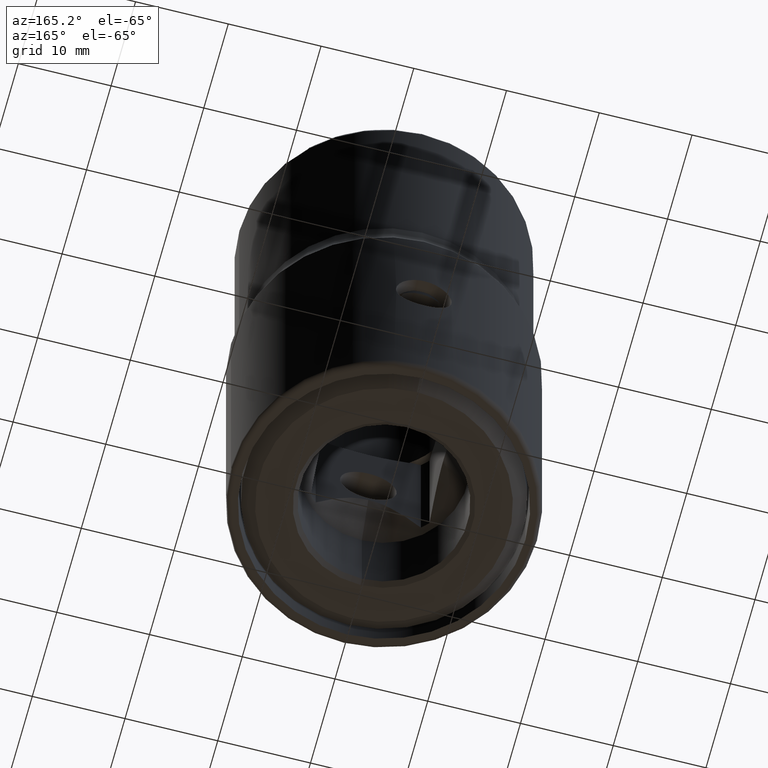
[diagram: clean part render]
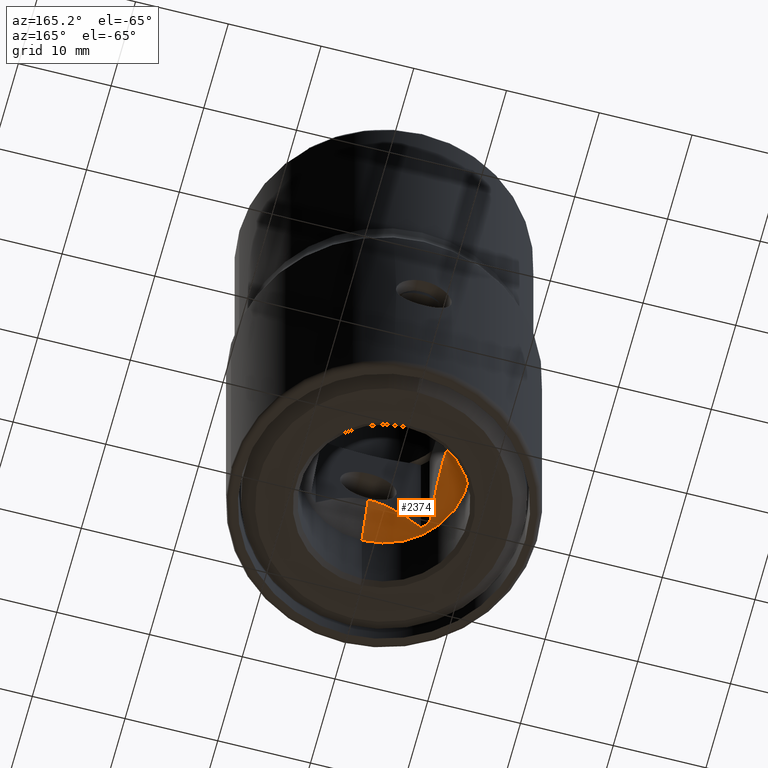
[diagram: same view with one face highlighted and labeled with its STEP entity id]
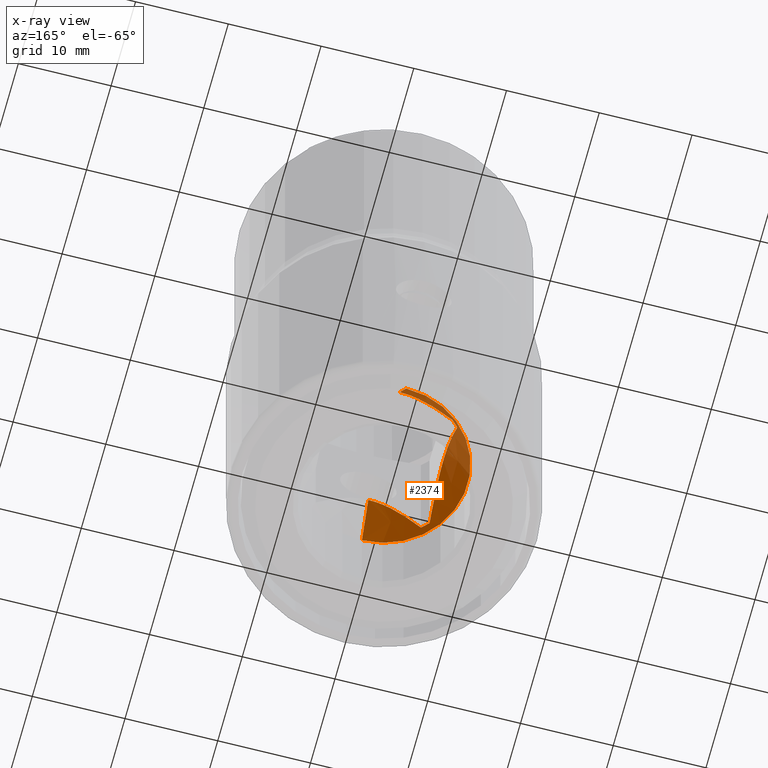
[diagram: x-ray of the same camera — body ghosted, the highlighted face saturated]
A machine part, auxiliary view. The second image highlights one B-rep face of the part: STEP entity #2374.
The next image is the same camera in x-ray: the body ghosted, the highlighted face saturated — about 23% of this face is hidden behind the body in this view.
In plain terms, the highlighted conical surface has half-angle 30 deg.
Its self-contained STEP definition (entity closure, byte-faithful):
#840=CARTESIAN_POINT('',(-6.405E0,5.663786277747E0,8.209920827877E-1));
#841=CARTESIAN_POINT('',(-6.405E0,5.348470422701E0,1.182774268748E0));
#842=CARTESIAN_POINT('',(-6.405E0,4.732973464916E0,1.855042181930E0));
#843=CARTESIAN_POINT('',(-6.405E0,3.852218889397E0,2.705426996089E0));
#844=CARTESIAN_POINT('',(-6.405E0,3.007580299649E0,3.397019485869E0));
#845=CARTESIAN_POINT('',(-6.405E0,2.196668298257E0,3.926012147431E0));
#846=CARTESIAN_POINT('',(-6.405E0,1.424468636011E0,4.288760944333E0));
#847=CARTESIAN_POINT('',(-6.405E0,6.983356955211E-1,4.492744171340E0));
#848=CARTESIAN_POINT('',(-6.405E0,1.921285016793E-4,4.557973895617E0));
#849=CARTESIAN_POINT('',(-6.405E0,-6.980178453314E-1,4.492806609732E0));
#850=CARTESIAN_POINT('',(-6.405E0,-1.424135454395E0,4.288886937664E0));
#851=CARTESIAN_POINT('',(-6.405E0,-2.196384878629E0,3.926176612467E0));
#852=CARTESIAN_POINT('',(-6.405E0,-3.007362443118E0,3.397184705898E0));
#853=CARTESIAN_POINT('',(-6.405E0,-3.852079579170E0,2.705555828171E0));
#854=CARTESIAN_POINT('',(-6.405E0,-4.732907125499E0,1.855113638274E0));
#855=CARTESIAN_POINT('',(-6.405E0,-5.348448538029E0,1.182799378441E0));
#856=CARTESIAN_POINT('',(-6.405E0,-5.663786277747E0,8.209920827877E-1));
#862=CARTESIAN_POINT('',(0.E0,0.E0,8.209920827877E-1));
#863=DIRECTION('',(0.E0,0.E0,-1.E0));
#864=DIRECTION('',(-6.624311435962E-1,-7.491228070175E-1,0.E0));
#865=AXIS2_PLACEMENT_3D('',#862,#863,#864);
#877=CARTESIAN_POINT('',(0.E0,-6.405E0,4.536241065023E0));
#878=CARTESIAN_POINT('',(-2.339187231382E-1,-6.405E0,4.536241065023E0));
#879=CARTESIAN_POINT('',(-7.098266761401E-1,-6.405E0,4.491298777830E0));
#880=CARTESIAN_POINT('',(-1.439460422199E0,-6.405E0,4.283012936418E0));
#881=CARTESIAN_POINT('',(-2.210253069438E0,-6.405E0,3.918156148817E0));
#882=CARTESIAN_POINT('',(-3.017802854795E0,-6.405E0,3.389252541775E0));
#883=CARTESIAN_POINT('',(-3.859305689015E0,-6.405E0,2.698896883854E0));
#884=CARTESIAN_POINT('',(-4.736196226240E0,-6.405E0,1.851553754454E0));
#885=CARTESIAN_POINT('',(-5.349546722054E0,-6.405E0,1.181539361190E0));
#886=CARTESIAN_POINT('',(-5.663786277747E0,-6.405E0,8.209920827877E-1));
#991=CARTESIAN_POINT('',(-5.663786277747E0,6.405E0,8.209920827877E-1));
#992=CARTESIAN_POINT('',(-5.349538488233E0,6.405E0,1.181548808383E0));
#993=CARTESIAN_POINT('',(-4.736208257109E0,6.405E0,1.851537115285E0));
#994=CARTESIAN_POINT('',(-3.859513353459E0,6.405E0,2.698696211419E0));
#995=CARTESIAN_POINT('',(-3.018321813197E0,6.405E0,3.388853293032E0));
#996=CARTESIAN_POINT('',(-2.210910483219E0,6.405E0,3.917779243256E0));
#997=CARTESIAN_POINT('',(-1.440133552954E0,6.405E0,4.282754877914E0));
#998=CARTESIAN_POINT('',(-7.104230907535E-1,6.405E0,4.491202017072E0));
#999=CARTESIAN_POINT('',(-2.341551370524E-1,6.405E0,4.536241065023E0));
#1000=CARTESIAN_POINT('',(0.E0,6.405E0,4.536241065023E0));
#1041=CARTESIAN_POINT('',(0.E0,0.E0,8.209920827877E-1));
#1042=DIRECTION('',(0.E0,0.E0,-1.E0));
#1043=DIRECTION('',(-7.491228070175E-1,6.624311435962E-1,0.E0));
#1044=AXIS2_PLACEMENT_3D('',#1041,#1042,#1043);
#1046=DIRECTION('',(0.E0,-5.E-1,-8.660254037844E-1));
#1047=VECTOR('',#1046,5.238E0);
#1048=CARTESIAN_POINT('',(0.E0,-6.405E0,4.536241065023E0));
#1049=LINE('',#1048,#1047);
#1050=DIRECTION('',(0.E0,5.E-1,-8.660254037844E-1));
#1051=VECTOR('',#1050,5.238E0);
#1052=CARTESIAN_POINT('',(0.E0,6.405E0,4.536241065023E0));
#1053=LINE('',#1052,#1051);
#1101=CARTESIAN_POINT('',(0.E0,0.E0,0.E0));
#1102=DIRECTION('',(0.E0,0.E0,1.E0));
#1103=DIRECTION('',(0.E0,1.E0,0.E0));
#1104=AXIS2_PLACEMENT_3D('',#1101,#1102,#1103);
#1357=VERTEX_POINT('',#877);
#1358=VERTEX_POINT('',#886);
#1360=VERTEX_POINT('',#991);
#1361=VERTEX_POINT('',#1000);
#1367=CARTESIAN_POINT('',(-6.405E0,-5.663786277747E0,8.209920827877E-1));
#1368=VERTEX_POINT('',#1367);
#1369=CARTESIAN_POINT('',(-6.405E0,5.663786277747E0,8.209920827877E-1));
#1370=VERTEX_POINT('',#1369);
#1371=CARTESIAN_POINT('',(0.E0,9.024E0,0.E0));
#1372=VERTEX_POINT('',#1371);
#1373=CARTESIAN_POINT('',(0.E0,-9.024E0,0.E0));
#1374=VERTEX_POINT('',#1373);
#2355=CARTESIAN_POINT('',(0.E0,0.E0,2.268120532831E0));
#2356=DIRECTION('',(0.E0,0.E0,-1.E0));
#2357=DIRECTION('',(0.E0,-1.E0,0.E0));
#2358=AXIS2_PLACEMENT_3D('',#2355,#2356,#2357);
#2359=CONICAL_SURFACE('',#2358,7.714499999816E0,3.E1);
#2360=ORIENTED_EDGE('',*,*,#2261,.T.);
#2361=ORIENTED_EDGE('',*,*,#2251,.T.);
#2362=ORIENTED_EDGE('',*,*,#2237,.F.);
#2364=ORIENTED_EDGE('',*,*,#2363,.T.);
#2365=ORIENTED_EDGE('',*,*,#2332,.T.);
#2367=ORIENTED_EDGE('',*,*,#2366,.T.);
#2369=ORIENTED_EDGE('',*,*,#2368,.T.);
#2371=ORIENTED_EDGE('',*,*,#2370,.F.);
#2372=EDGE_LOOP('',(#2360,#2361,#2362,#2364,#2365,#2367,#2369,#2371));
#2373=FACE_OUTER_BOUND('',#2372,.F.);
#2374=ADVANCED_FACE('',(#2373),#2359,.F.);
#857=B_SPLINE_CURVE_WITH_KNOTS('',3,(#840,#841,#842,#843,#844,#845,#846,#847,
#848,#849,#850,#851,#852,#853,#854,#855,#856),.UNSPECIFIED.,.F.,.F.,(4,1,1,1,1,
1,1,1,1,1,1,1,1,1,4),(0.E0,7.142857142857E-2,1.428571428571E-1,
2.142857142857E-1,2.857142857143E-1,3.571428571429E-1,4.285714285714E-1,5.E-1,
5.714285714286E-1,6.428571428571E-1,7.142857142857E-1,7.857142857143E-1,
8.571428571429E-1,9.285714285714E-1,1.E0),.UNSPECIFIED.);
#866=CIRCLE('',#865,8.55E0);
#887=B_SPLINE_CURVE_WITH_KNOTS('',3,(#877,#878,#879,#880,#881,#882,#883,#884,
#885,#886),.UNSPECIFIED.,.F.,.F.,(4,1,1,1,1,1,1,4),(0.E0,1.428571428571E-1,
2.857142857143E-1,4.285714285714E-1,5.714285714286E-1,7.142857142857E-1,
8.571428571429E-1,1.E0),.UNSPECIFIED.);
#1001=B_SPLINE_CURVE_WITH_KNOTS('',3,(#991,#992,#993,#994,#995,#996,#997,#998,
#999,#1000),.UNSPECIFIED.,.F.,.F.,(4,1,1,1,1,1,1,4),(0.E0,1.428571428571E-1,
2.857142857143E-1,4.285714285714E-1,5.714285714286E-1,7.142857142857E-1,
8.571428571429E-1,1.E0),.UNSPECIFIED.);
#1045=CIRCLE('',#1044,8.55E0);
#1105=CIRCLE('',#1104,9.024E0);
#2237=EDGE_CURVE('',#1370,#1368,#857,.T.);
#2251=EDGE_CURVE('',#1358,#1368,#866,.T.);
#2261=EDGE_CURVE('',#1357,#1358,#887,.T.);
#2332=EDGE_CURVE('',#1360,#1361,#1001,.T.);
#2363=EDGE_CURVE('',#1370,#1360,#1045,.T.);
#2366=EDGE_CURVE('',#1361,#1372,#1053,.T.);
#2368=EDGE_CURVE('',#1372,#1374,#1105,.T.);
#2370=EDGE_CURVE('',#1357,#1374,#1049,.T.);